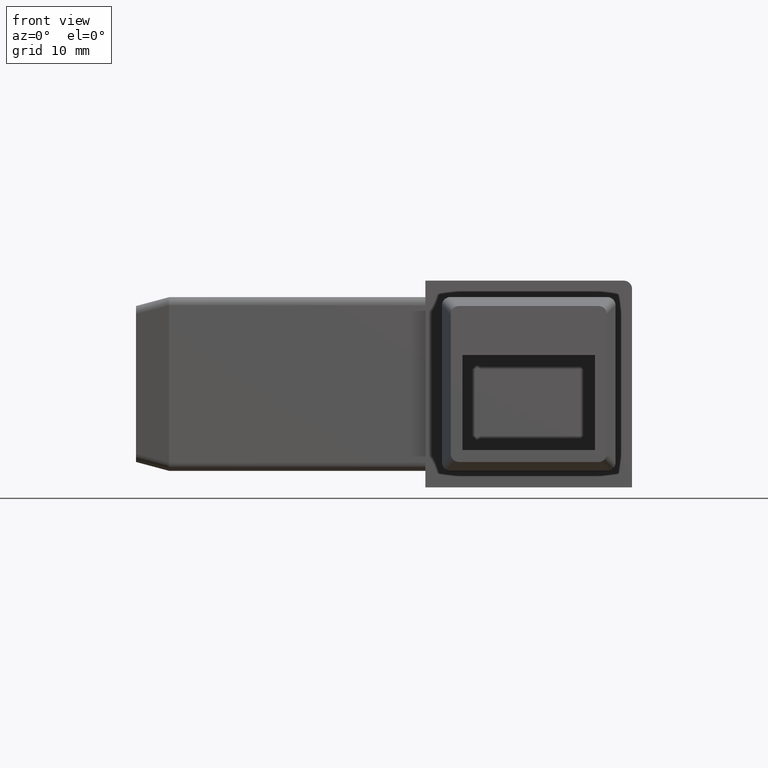
[diagram: clean part render]
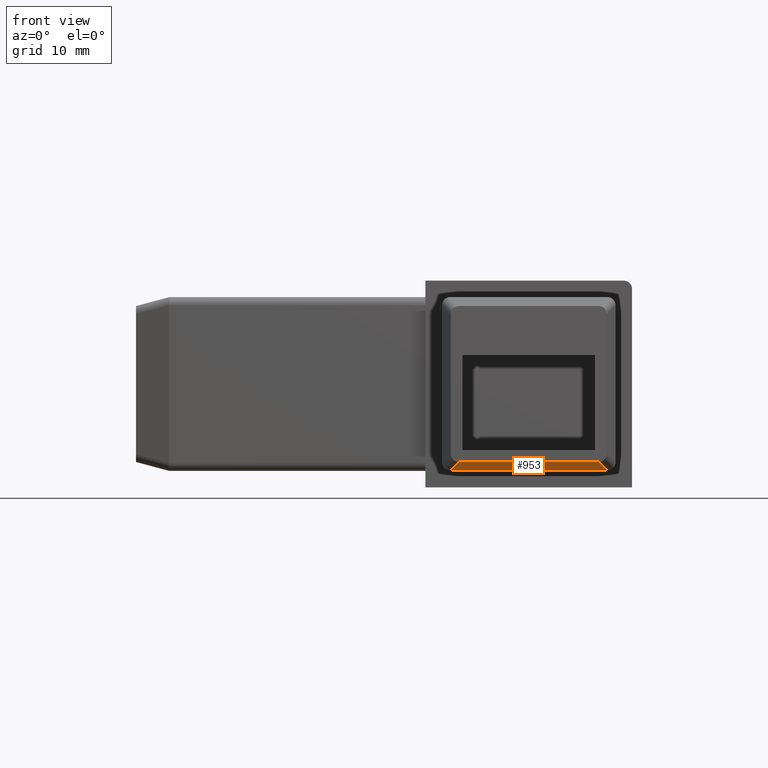
[diagram: same view with one face highlighted and labeled with its STEP entity id]
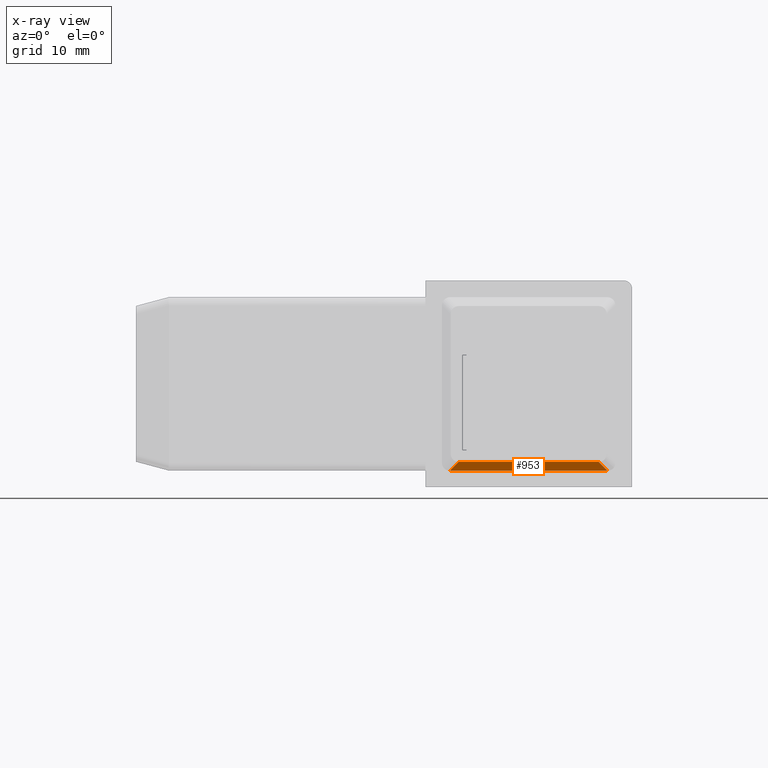
[diagram: x-ray of the same camera — body ghosted, the highlighted face saturated]
A machine part, front view. The second image highlights one B-rep face of the part: STEP entity #953.
The next image is the same camera in x-ray: the body ghosted, the highlighted face saturated — about 0% of this face is hidden behind the body in this view.
In plain terms, the highlighted planar face has unit normal (-0, -0.2588, -0.9659).
Its self-contained STEP definition (entity closure, byte-faithful):
#29=PLANE('',#1050);
#84=FACE_OUTER_BOUND('',#137,.T.);
#137=EDGE_LOOP('',(#725,#726,#727,#728,#729,#730));
#193=ELLIPSE('',#1048,3.86370330515628,1.);
#195=ELLIPSE('',#1051,3.86370330515628,1.);
#237=LINE('',#1501,#332);
#241=LINE('',#1519,#336);
#242=LINE('',#1523,#337);
#243=LINE('',#1524,#338);
#332=VECTOR('',#1209,10.);
#336=VECTOR('',#1227,10.);
#337=VECTOR('',#1230,10.);
#338=VECTOR('',#1231,10.);
#433=VERTEX_POINT('',#1499);
#434=VERTEX_POINT('',#1500);
#439=VERTEX_POINT('',#1511);
#441=VERTEX_POINT('',#1518);
#442=VERTEX_POINT('',#1520);
#443=VERTEX_POINT('',#1522);
#541=EDGE_CURVE('',#433,#434,#237,.T.);
#547=EDGE_CURVE('',#439,#433,#193,.T.);
#550=EDGE_CURVE('',#439,#441,#241,.T.);
#551=EDGE_CURVE('',#442,#441,#195,.T.);
#552=EDGE_CURVE('',#443,#442,#242,.T.);
#553=EDGE_CURVE('',#443,#434,#243,.T.);
#725=ORIENTED_EDGE('',*,*,#541,.F.);
#726=ORIENTED_EDGE('',*,*,#547,.F.);
#727=ORIENTED_EDGE('',*,*,#550,.T.);
#728=ORIENTED_EDGE('',*,*,#551,.F.);
#729=ORIENTED_EDGE('',*,*,#552,.F.);
#730=ORIENTED_EDGE('',*,*,#553,.T.);
#953=ADVANCED_FACE('',(#84),#29,.T.);
#1048=AXIS2_PLACEMENT_3D('',#1513,#1220,#1221);
#1050=AXIS2_PLACEMENT_3D('',#1517,#1225,#1226);
#1051=AXIS2_PLACEMENT_3D('',#1521,#1228,#1229);
#1209=DIRECTION('',(0.250562807085732,-0.93511312653103,0.250562807085731));
#1220=DIRECTION('center_axis',(2.04265350938324E-16,0.25881904510252,0.965925826289068));
#1221=DIRECTION('ref_axis',(-7.18367157710787E-17,0.965925826289068,-0.25881904510252));
#1225=DIRECTION('center_axis',(-2.04265350938324E-16,-0.25881904510252,
-0.965925826289068));
#1226=DIRECTION('ref_axis',(-1.,0.,2.11471052309554E-16));
#1227=DIRECTION('',(1.,0.,-2.11471052309554E-16));
#1228=DIRECTION('center_axis',(2.04265350938324E-16,0.25881904510252,0.965925826289068));
#1229=DIRECTION('ref_axis',(-5.38775368283091E-17,0.965925826289068,-0.25881904510252));
#1230=DIRECTION('',(0.250562807085731,0.93511312653103,-0.250562807085731));
#1231=DIRECTION('',(-1.,0.,2.11471052309554E-16));
#1499=CARTESIAN_POINT('',(-9.53351247303272,-43.5020962954697,-10.4994382993218));
#1500=CARTESIAN_POINT('',(-8.46227740398644,-47.5,-9.42820323027551));
#1501=CARTESIAN_POINT('',(-8.43325483331081,-47.6083137083277,-9.39918065959988));
#1511=CARTESIAN_POINT('',(-9.5,-43.5,-10.5));
#1513=CARTESIAN_POINT('Origin',(-9.5,-47.2320508075689,-9.5));
#1517=CARTESIAN_POINT('Origin',(-5.25,-45.5,-9.96410161513775));
#1518=CARTESIAN_POINT('',(9.5,-43.5,-10.5));
#1519=CARTESIAN_POINT('',(-5.25,-43.5,-10.5));
#1520=CARTESIAN_POINT('',(9.53351247303272,-43.5020962954697,-10.4994382993218));
#1521=CARTESIAN_POINT('Origin',(9.5,-47.2320508075689,-9.5));
#1522=CARTESIAN_POINT('',(8.46227740398644,-47.5,-9.42820323027551));
#1523=CARTESIAN_POINT('',(8.43325483331081,-47.6083137083277,-9.39918065959988));
#1524=CARTESIAN_POINT('',(-5.25,-47.5,-9.42820323027551));